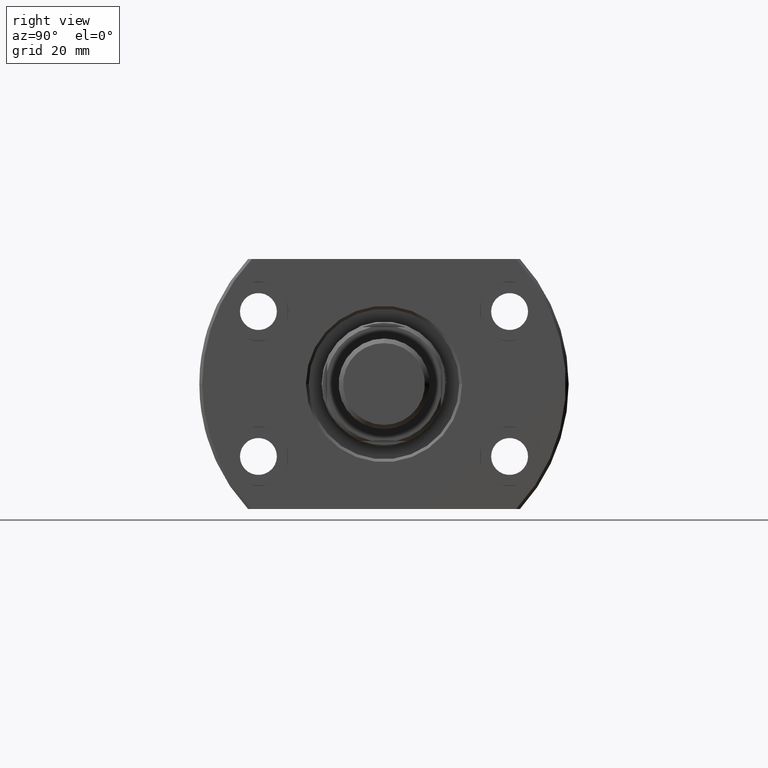
[diagram: clean part render]
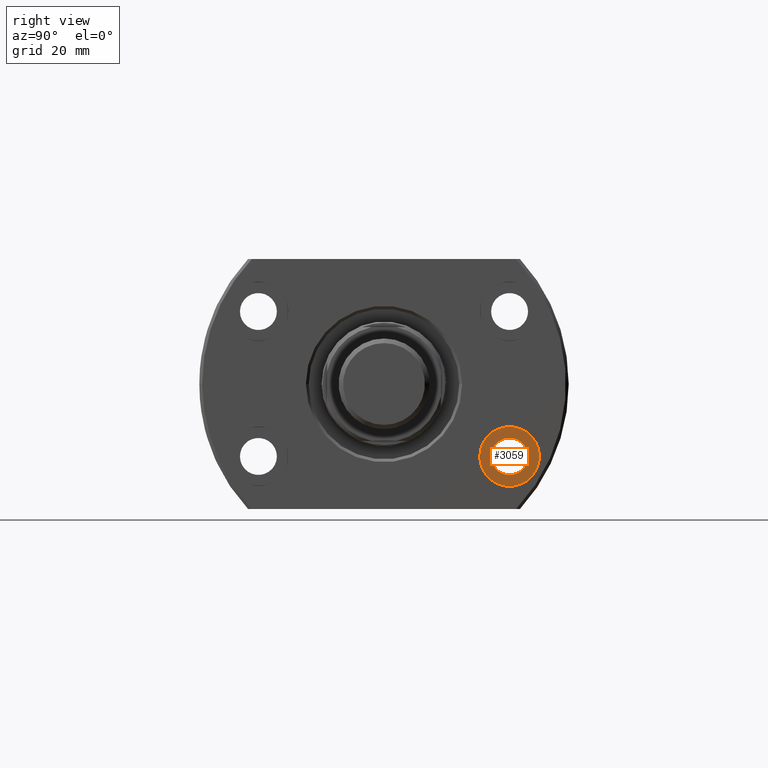
[diagram: same view with one face highlighted and labeled with its STEP entity id]
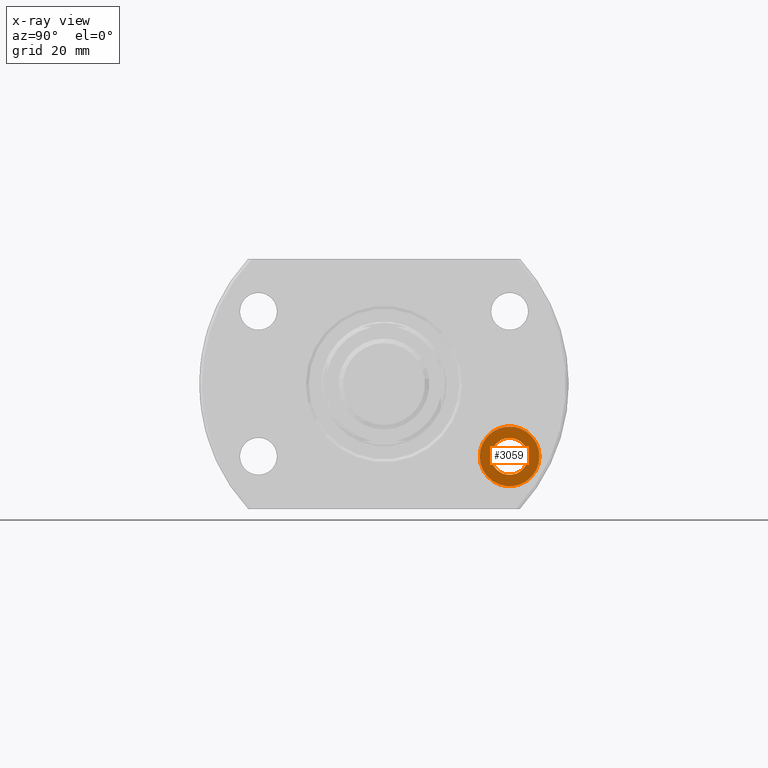
[diagram: x-ray of the same camera — body ghosted, the highlighted face saturated]
A machine part, right view. The second image highlights one B-rep face of the part: STEP entity #3059.
The next image is the same camera in x-ray: the body ghosted, the highlighted face saturated — about 0% of this face is hidden behind the body in this view.
In plain terms, the highlighted planar face has unit normal (1, -0, -0).
Its self-contained STEP definition (entity closure, byte-faithful):
#29 = DIRECTION ( 'NONE',  ( 2.882309775469156694E-14, 1.000000000000000000, 0.000000000000000000 ) ) ;
#237 = CARTESIAN_POINT ( 'NONE',  ( 21.00000000000064304, 22.09999999999939746, -12.75000000000000178 ) ) ;
#301 = CARTESIAN_POINT ( 'NONE',  ( 21.00000000000064304, 22.09999999999939746, -12.75000000000000178 ) ) ;
#310 = EDGE_CURVE ( 'NONE', #1053, #1845, #1805, .T. ) ;
#443 = VERTEX_POINT ( 'NONE', #933 ) ;
#563 = CIRCLE ( 'NONE', #1155, 3.249999999999999556 ) ;
#575 = CARTESIAN_POINT ( 'NONE',  ( 21.00000000000064304, 22.09999999999939746, -12.75000000000000178 ) ) ;
#737 = CIRCLE ( 'NONE', #3185, 5.250000000000000888 ) ;
#761 = CARTESIAN_POINT ( 'NONE',  ( 21.00000000000073541, 25.34999999999939746, -12.75000000000000178 ) ) ;
#835 = CARTESIAN_POINT ( 'NONE',  ( 21.00000000000064304, 22.09999999999939746, -12.75000000000000178 ) ) ;
#933 = CARTESIAN_POINT ( 'NONE',  ( 21.00000000000055067, 18.84999999999939746, -12.75000000000000178 ) ) ;
#1053 = VERTEX_POINT ( 'NONE', #2729 ) ;
#1116 = DIRECTION ( 'NONE',  ( 2.907726969256361977E-14, 1.000000000000000000, 0.000000000000000000 ) ) ;
#1155 = AXIS2_PLACEMENT_3D ( 'NONE', #835, #1962, #3621 ) ;
#1193 = ORIENTED_EDGE ( 'NONE', *, *, #310, .T. ) ;
#1231 = DIRECTION ( 'NONE',  ( 2.887798767815668620E-14, 1.000000000000000000, 0.000000000000000000 ) ) ;
#1327 = EDGE_CURVE ( 'NONE', #3229, #443, #2528, .T. ) ;
#1391 = EDGE_CURVE ( 'NONE', #1845, #1053, #737, .T. ) ;
#1403 = DIRECTION ( 'NONE',  ( 1.000000000000000000, -2.887798767815668620E-14, -6.310887241768094443E-30 ) ) ;
#1460 = EDGE_CURVE ( 'NONE', #443, #3229, #563, .T. ) ;
#1543 = ORIENTED_EDGE ( 'NONE', *, *, #1460, .F. ) ;
#1568 = AXIS2_PLACEMENT_3D ( 'NONE', #237, #1403, #1116 ) ;
#1677 = ORIENTED_EDGE ( 'NONE', *, *, #1327, .F. ) ;
#1694 = CARTESIAN_POINT ( 'NONE',  ( 21.00000000000079581, 27.34999999999939746, -12.75000000000000178 ) ) ;
#1715 = DIRECTION ( 'NONE',  ( 1.000000000000000000, -2.887798767815668620E-14, -6.310887241768094443E-30 ) ) ;
#1805 = CIRCLE ( 'NONE', #1568, 5.250000000000000888 ) ;
#1845 = VERTEX_POINT ( 'NONE', #1694 ) ;
#1847 = CARTESIAN_POINT ( 'NONE',  ( 21.00000000000000355, -6.065243638909961053E-13, -1.735493991486226196E-28 ) ) ;
#1962 = DIRECTION ( 'NONE',  ( 1.000000000000000000, -2.887798767815668620E-14, -6.310887241768094443E-30 ) ) ;
#2059 = FACE_OUTER_BOUND ( 'NONE', #3155, .T. ) ;
#2280 = DIRECTION ( 'NONE',  ( 1.000000000000000000, -2.887798767815668620E-14, -6.310887241768094443E-30 ) ) ;
#2528 = CIRCLE ( 'NONE', #3345, 3.249999999999999556 ) ;
#2729 = CARTESIAN_POINT ( 'NONE',  ( 21.00000000000049027, 16.84999999999939746, -12.75000000000000178 ) ) ;
#2794 = EDGE_LOOP ( 'NONE', ( #1677, #1543 ) ) ;
#2796 = DIRECTION ( 'NONE',  ( 2.907726969256361977E-14, 1.000000000000000000, 0.000000000000000000 ) ) ;
#2968 = DIRECTION ( 'NONE',  ( 1.000000000000000000, -2.887798767815668620E-14, -6.310887241768094443E-30 ) ) ;
#3059 = ADVANCED_FACE ( 'NONE', ( #3487, #2059 ), #3254, .T. ) ;
#3155 = EDGE_LOOP ( 'NONE', ( #3553, #1193 ) ) ;
#3185 = AXIS2_PLACEMENT_3D ( 'NONE', #301, #2280, #2796 ) ;
#3229 = VERTEX_POINT ( 'NONE', #761 ) ;
#3254 = PLANE ( 'NONE',  #3659 ) ;
#3345 = AXIS2_PLACEMENT_3D ( 'NONE', #575, #1715, #29 ) ;
#3487 = FACE_BOUND ( 'NONE', #2794, .T. ) ;
#3553 = ORIENTED_EDGE ( 'NONE', *, *, #1391, .T. ) ;
#3621 = DIRECTION ( 'NONE',  ( 2.882309775469156694E-14, 1.000000000000000000, 0.000000000000000000 ) ) ;
#3659 = AXIS2_PLACEMENT_3D ( 'NONE', #1847, #2968, #1231 ) ;